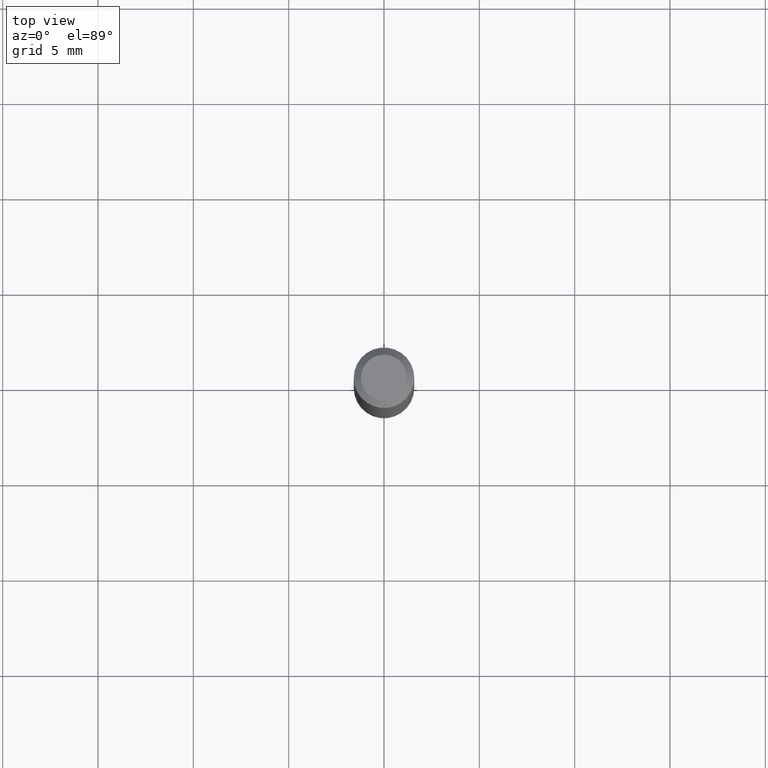
[diagram: clean part render]
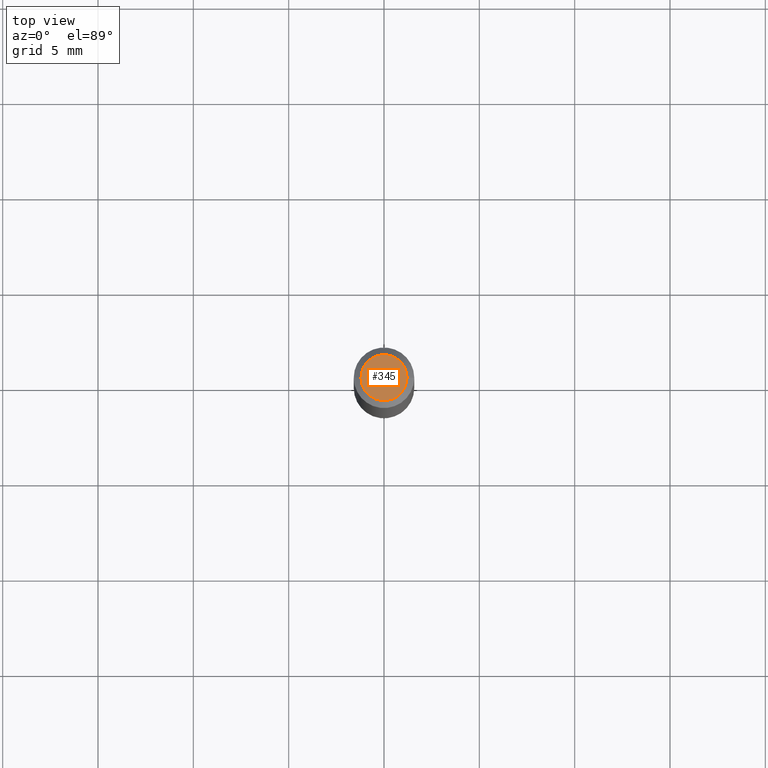
[diagram: same view with one face highlighted and labeled with its STEP entity id]
A machine part, top view. The second image highlights one B-rep face of the part: STEP entity #345.
In plain terms, the highlighted planar face has unit normal (0, -0, -1).
Its self-contained STEP definition (entity closure, byte-faithful):
#13 = VERTEX_POINT ( 'NONE', #215 ) ;
#19 = EDGE_CURVE ( 'NONE', #13, #120, #229, .T. ) ;
#70 = DIRECTION ( 'NONE',  ( -1.000000000000000000, 6.982962677686265922E-15, -4.876176775795935793E-29 ) ) ;
#88 = CARTESIAN_POINT ( 'NONE',  ( -6.641529175093299695E-45, 9.482343474417248123E-31, 2.715851111367844914E-16 ) ) ;
#101 = FACE_OUTER_BOUND ( 'NONE', #233, .T. ) ;
#120 = VERTEX_POINT ( 'NONE', #312 ) ;
#170 = ORIENTED_EDGE ( 'NONE', *, *, #19, .T. ) ;
#177 = CIRCLE ( 'NONE', #300, 0.04749999999999999362 ) ;
#193 = PLANE ( 'NONE',  #261 ) ;
#215 = CARTESIAN_POINT ( 'NONE',  ( 0.04749999999999999362, -4.035134999187573693E-16, 2.715851111367870552E-16 ) ) ;
#228 = CARTESIAN_POINT ( 'NONE',  ( -6.641529175093299695E-45, 9.482343474417248123E-31, 2.715851111367844914E-16 ) ) ;
#229 = CIRCLE ( 'NONE', #385, 0.04749999999999999362 ) ;
#233 = EDGE_LOOP ( 'NONE', ( #373, #170 ) ) ;
#252 = DIRECTION ( 'NONE',  ( 1.000000000000000000, -6.982962677686267499E-15, 4.852736867747366768E-29 ) ) ;
#261 = AXIS2_PLACEMENT_3D ( 'NONE', #402, #440, #70 ) ;
#262 = DIRECTION ( 'NONE',  ( 1.000000000000000000, -6.982962677686267499E-15, 4.852736867747366768E-29 ) ) ;
#273 = DIRECTION ( 'NONE',  ( -2.445468806185136597E-29, 3.491481338843145583E-15, 1.000000000000000000 ) ) ;
#276 = EDGE_CURVE ( 'NONE', #120, #13, #177, .T. ) ;
#300 = AXIS2_PLACEMENT_3D ( 'NONE', #228, #352, #262 ) ;
#312 = CARTESIAN_POINT ( 'NONE',  ( -0.04749999999999999362, 3.578768372314215436E-16, 2.715851111367820755E-16 ) ) ;
#345 = ADVANCED_FACE ( 'NONE', ( #101 ), #193, .F. ) ;
#352 = DIRECTION ( 'NONE',  ( -2.445468806185136597E-29, 3.491481338843145583E-15, 1.000000000000000000 ) ) ;
#373 = ORIENTED_EDGE ( 'NONE', *, *, #276, .T. ) ;
#385 = AXIS2_PLACEMENT_3D ( 'NONE', #88, #273, #252 ) ;
#402 = CARTESIAN_POINT ( 'NONE',  ( 3.316907271900976096E-16, 0.04749999999999999362, -3.005280802665715689E-17 ) ) ;
#440 = DIRECTION ( 'NONE',  ( 2.438088387897960049E-29, -3.491481338843145188E-15, -1.000000000000000000 ) ) ;